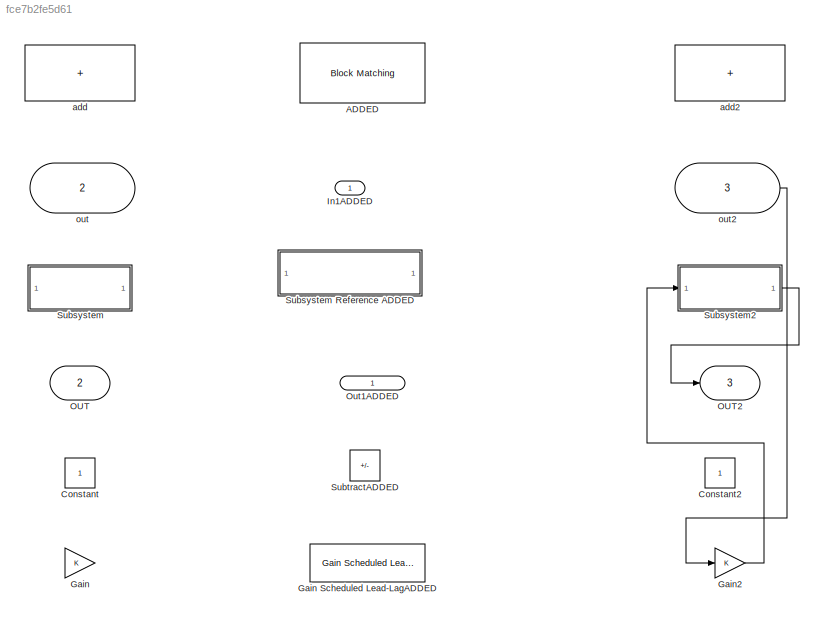
MODEL slx_fce7b2fe5d61
KIND model
CONFIG AbsTol = auto
CONFIG EnableMultiTasking = off
CONFIG FixedStep = auto
CONFIG MaxStep = auto
CONFIG MinStep = auto
CONFIG RelTol = 1e-3
CONFIG SampleTimeConstraint = Unconstrained
CONFIG SolverName = VariableStepAuto
CONFIG StartTime = 0.0
CONFIG StopTime = 10.0
BLOCK [Reference] ADDED  REF=visionanalysis/Block Matching
  SourceBlock = visionanalysis/Block Matching
  SourceType = Block Matching
BLOCK [Constant] Constant
BLOCK [Constant] Constant2
BLOCK [Gain] Gain
BLOCK [Reference] Gain Scheduled Lead-LagADDED  REF=aerolibschedule/Gain Scheduled
Lead-Lag
  SourceBlock = aerolibschedule/Gain Scheduled\nLead-Lag
  SourceType = Gain Scheduled Lead-Lag
BLOCK [Gain] Gain2
BLOCK [Inport] In1ADDED
BLOCK [Outport] OUT
  Port = 2
BLOCK [Outport] OUT2
  Port = 3
BLOCK [Outport] Out1ADDED
  VectorParamsAs1DForOutWhenUnconnected = off
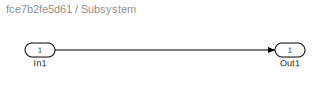
BLOCK [SubSystem] Subsystem
BLOCK [SubSystem] Subsystem Reference ADDED
  ReferencedSubsystem = <file name>
BLOCK [Inport] Subsystem/In1
BLOCK [Outport] Subsystem/Out1
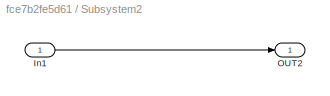
BLOCK [SubSystem] Subsystem2
BLOCK [Inport] Subsystem2/In1
BLOCK [Outport] Subsystem2/OUT2
BLOCK [Sum] SubtractADDED
  IconShape = rectangular
  Inputs = +-
BLOCK [Sum] add
  IconShape = rectangular
BLOCK [Sum] add2
  IconShape = rectangular
BLOCK [Inport] out
  Port = 2
BLOCK [Inport] out2
  Port = 3
LINE Gain2:1 -> Subsystem2:1
LINE Subsystem/In1:1 -> Subsystem/Out1:1
LINE Subsystem2/In1:1 -> Subsystem2/OUT2:1
LINE Subsystem2:1 -> OUT2:1
LINE out2:1 -> Gain2:1
